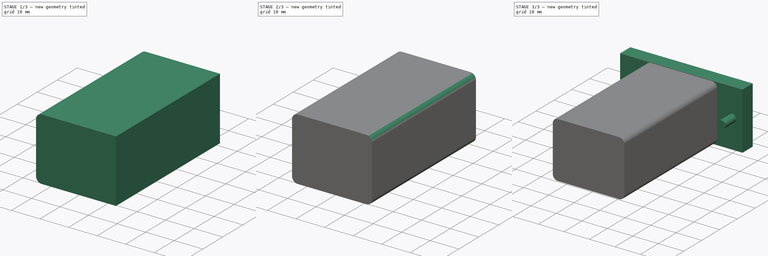
[diagram: build sequence overview — one tinted view per stage of 3, left to right]
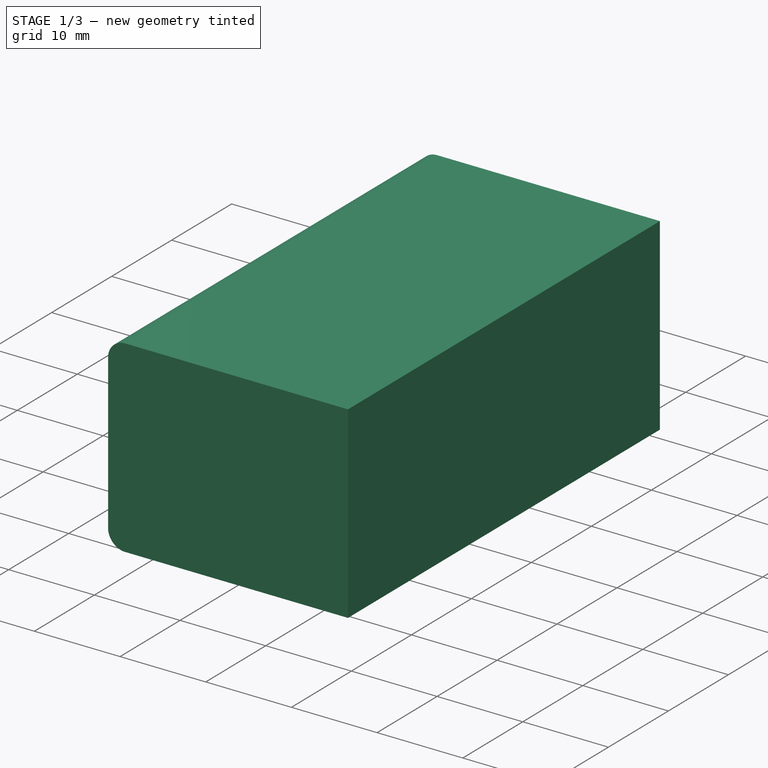
[diagram: stage 1 of 3 — iso view after this stage's code; geometry added in this stage tinted green]
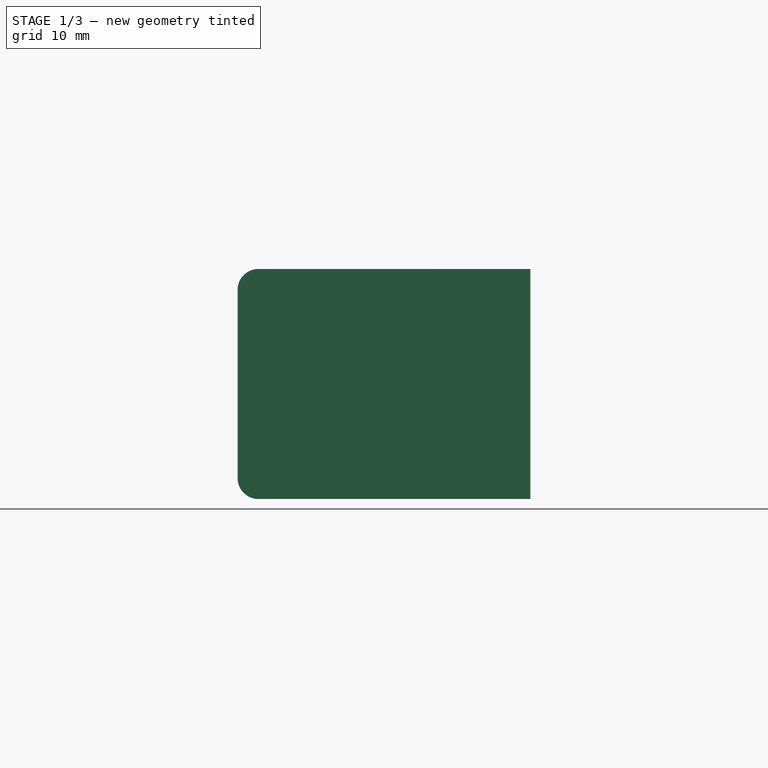
[diagram: stage 1 of 3 — front view after this stage's code; geometry added in this stage tinted green]
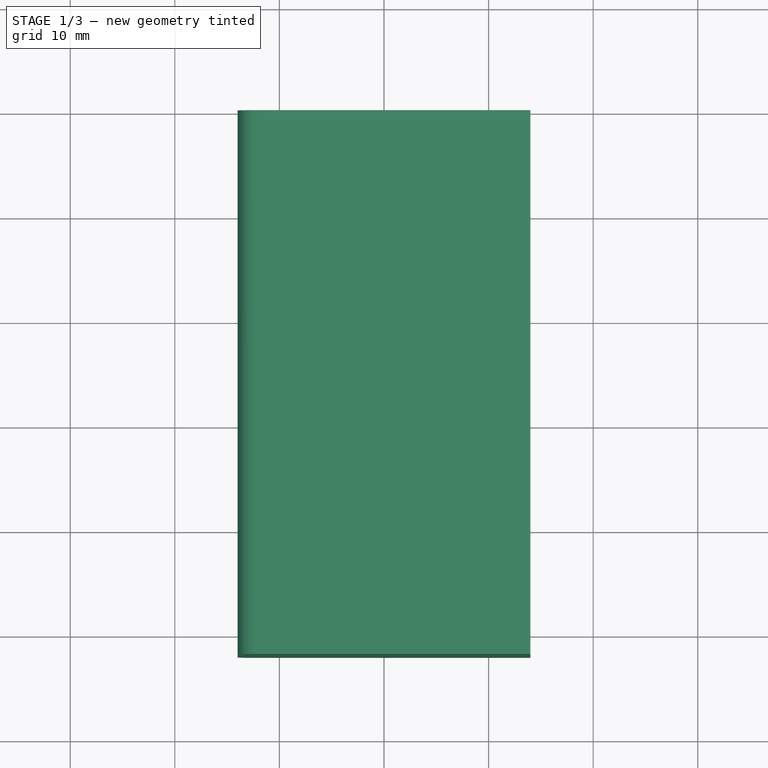
[diagram: stage 1 of 3 — top view after this stage's code; geometry added in this stage tinted green]
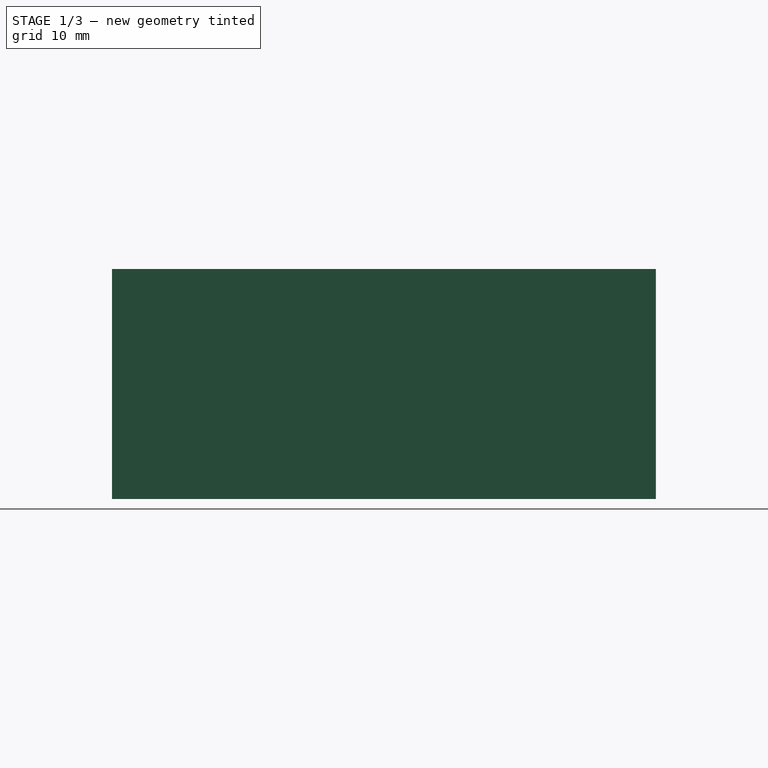
[diagram: stage 1 of 3 — right view after this stage's code; geometry added in this stage tinted green]
FCSTD DOCUMENT  (FreeCAD 0.19R24291 (Git))
Label: acpwrcon
License: All rights reserved
LicenseURL: http://en.wikipedia.org/wiki/All_rights_reserved
objects: PartDesign::Fillet×4, PartDesign::AdditiveCylinder×2, Sketcher::SketchObject×1, PartDesign::Pad×1, PartDesign::AdditiveBox×1, PartDesign::Body×1
note: 18 computed .brp shape members not serialized (recipe doc carries the construction recipe); baked Part::Feature solids carry a one-line shape summary decoded from their .brp

FEATURE [Sketcher::SketchObject] Sketch
  FullyConstrained = false
  MapMode = 5
  Placement = pos=(0,0,0) rot=(1,0,0;1.5708rad)
  Support = -> [XZ_Plane]
  sketch-geometry (4):
    g0: LineSegment StartX=-14 StartY=-11 StartZ=0 EndX=14 EndY=-11 EndZ=0
    g1: LineSegment StartX=14 StartY=-11 StartZ=0 EndX=14 EndY=11 EndZ=0
    g2: LineSegment StartX=14 StartY=11 StartZ=0 EndX=-14 EndY=11 EndZ=0
    g3: LineSegment StartX=-14 StartY=11 StartZ=0 EndX=-14 EndY=-11 EndZ=0
  constraints (8):
    c: Coincident(g0,g1)
    c: Coincident(g1,g2)
    c: Coincident(g2,g3)
    c: Coincident(g3,g0)
    c: Horizontal(g0)
    c: Horizontal(g2)
    c: Vertical(g1)
    c: Vertical(g3)
FEATURE [PartDesign::Pad] Pad
  Direction = (1,1,1)
  Length = 52
  Length2 = 100
  Placement = pos=(0,0,0) rot=(1,0,0;1.5708rad)
  Profile = -> Sketch
  Refine = true
  Type = 0
FEATURE [PartDesign::Fillet] Fillet
  Base = -> Pad [Edge8]
  BaseFeature = -> Pad
  Placement = pos=(0,0,0) rot=(1,0,0;1.5708rad)
  Radius = 2
  Refine = true
  SupportTransform = false
FEATURE [PartDesign::Fillet] Fillet001
  Base = -> Fillet [Edge15]
  BaseFeature = -> Fillet
  Placement = pos=(0,0,0) rot=(1,0,0;1.5708rad)
  Radius = 2
  Refine = true
  SupportTransform = false
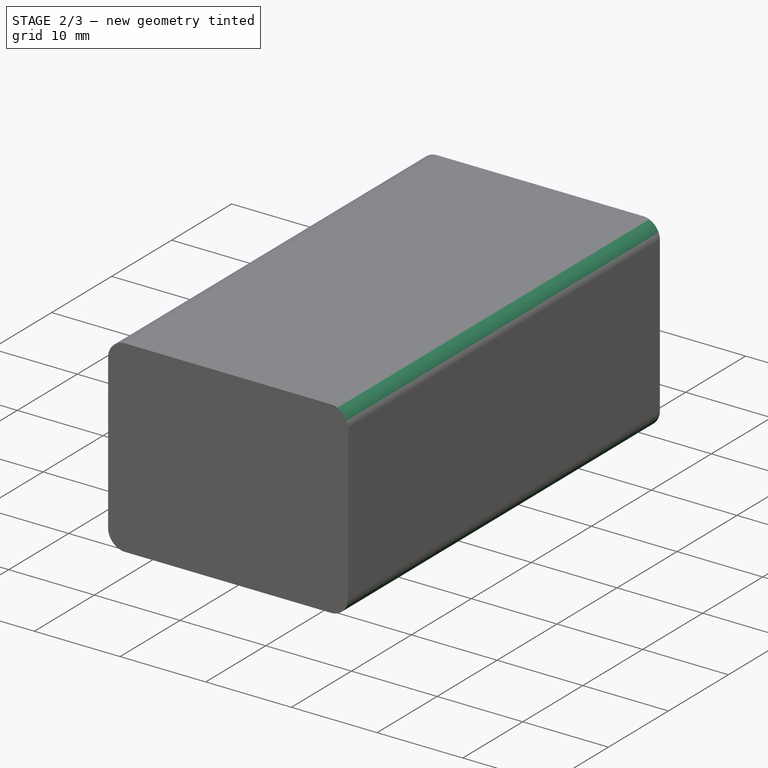
[diagram: stage 2 of 3 — iso view after this stage's code; geometry added in this stage tinted green]
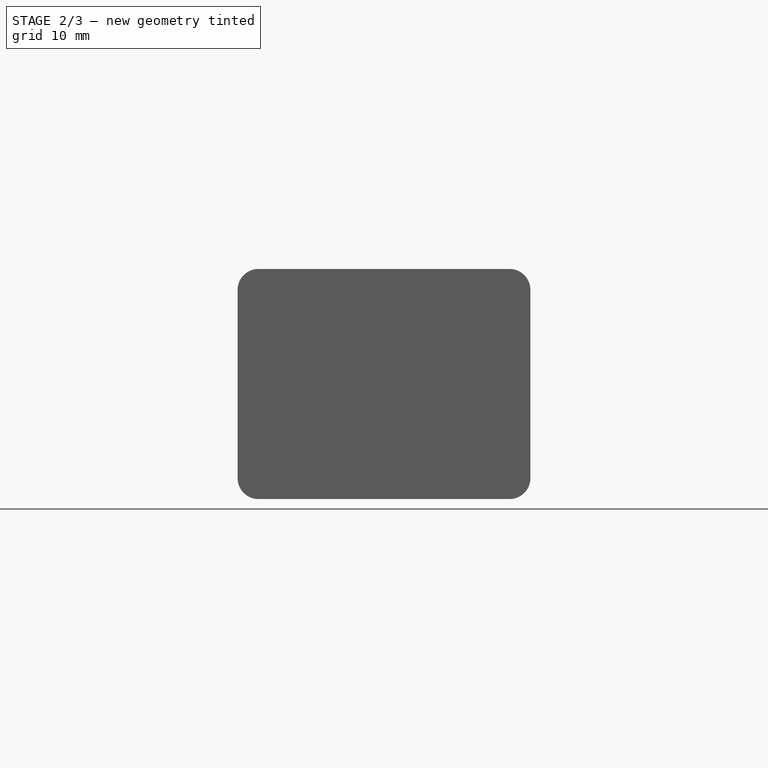
[diagram: stage 2 of 3 — front view after this stage's code; geometry added in this stage tinted green]
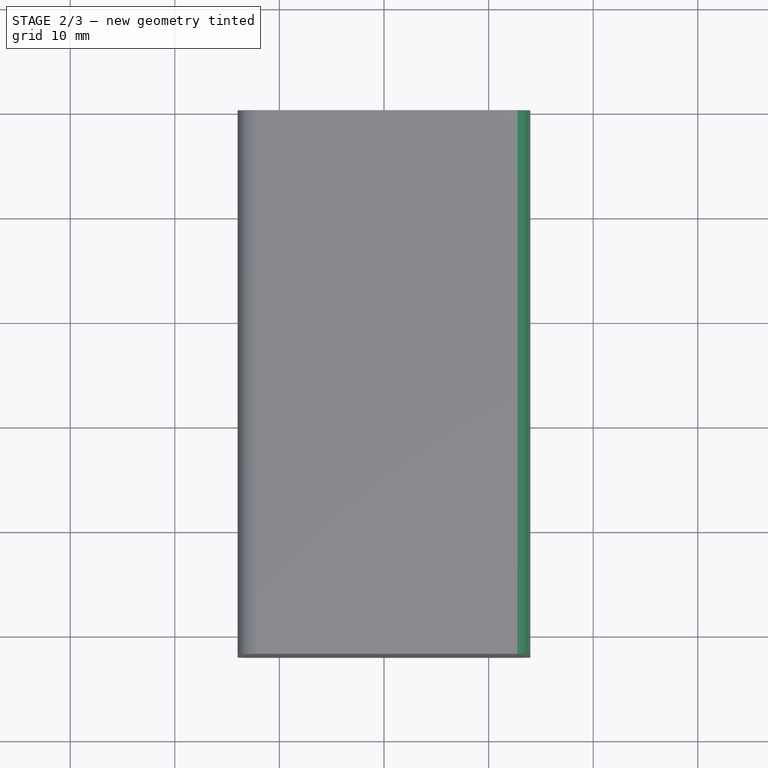
[diagram: stage 2 of 3 — top view after this stage's code; geometry added in this stage tinted green]
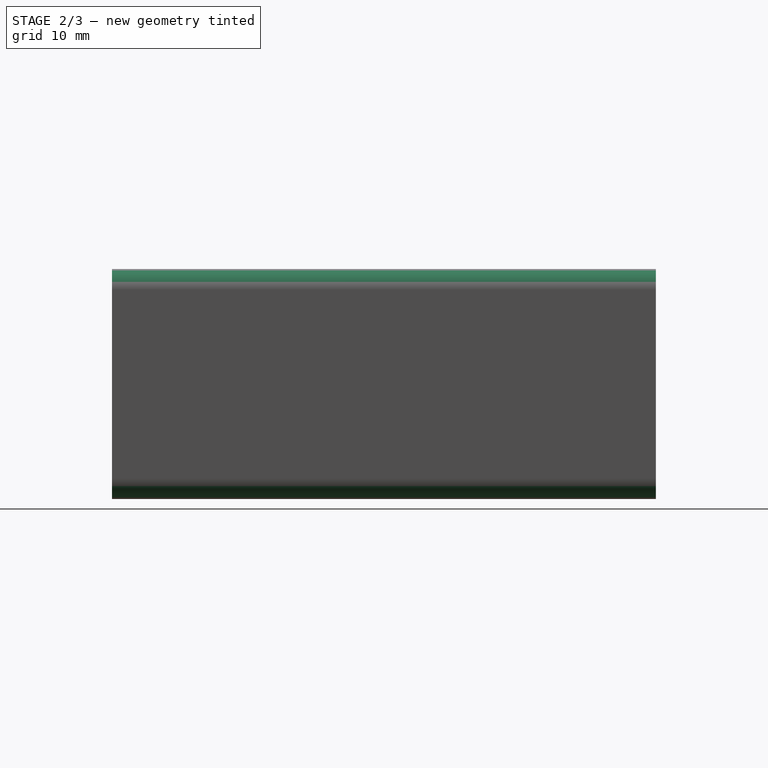
[diagram: stage 2 of 3 — right view after this stage's code; geometry added in this stage tinted green]
FEATURE [PartDesign::Fillet] Fillet002
  Base = -> Fillet001 [Edge16]
  BaseFeature = -> Fillet001
  Placement = pos=(0,0,0) rot=(1,0,0;1.5708rad)
  Radius = 2
  Refine = true
  SupportTransform = false
FEATURE [PartDesign::Fillet] Fillet003
  Base = -> Fillet002 [Edge15]
  BaseFeature = -> Fillet002
  Placement = pos=(0,0,0) rot=(1,0,0;1.5708rad)
  Radius = 2
  Refine = true
  SupportTransform = false
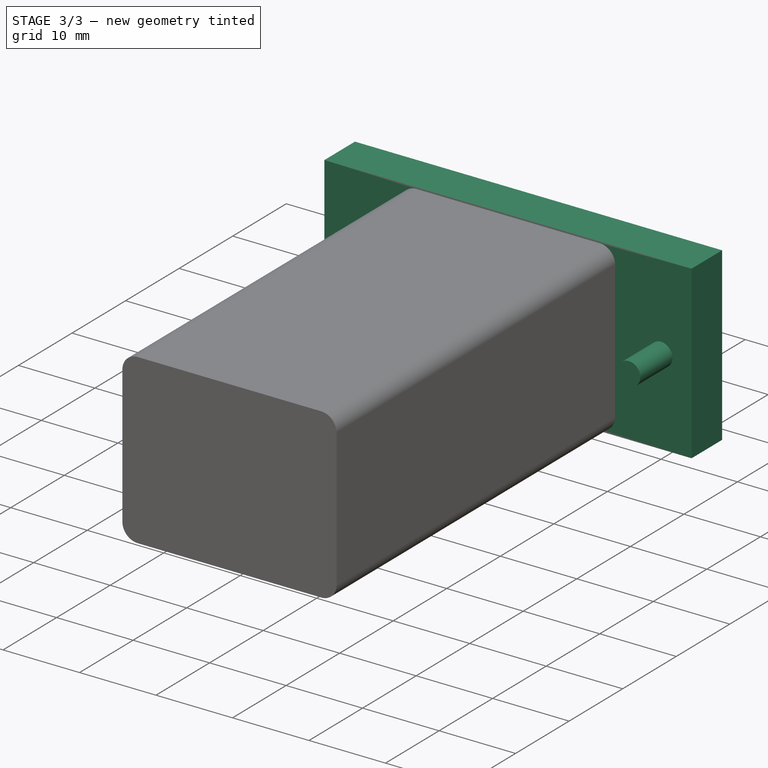
[diagram: stage 3 of 3 — iso view after this stage's code; geometry added in this stage tinted green]
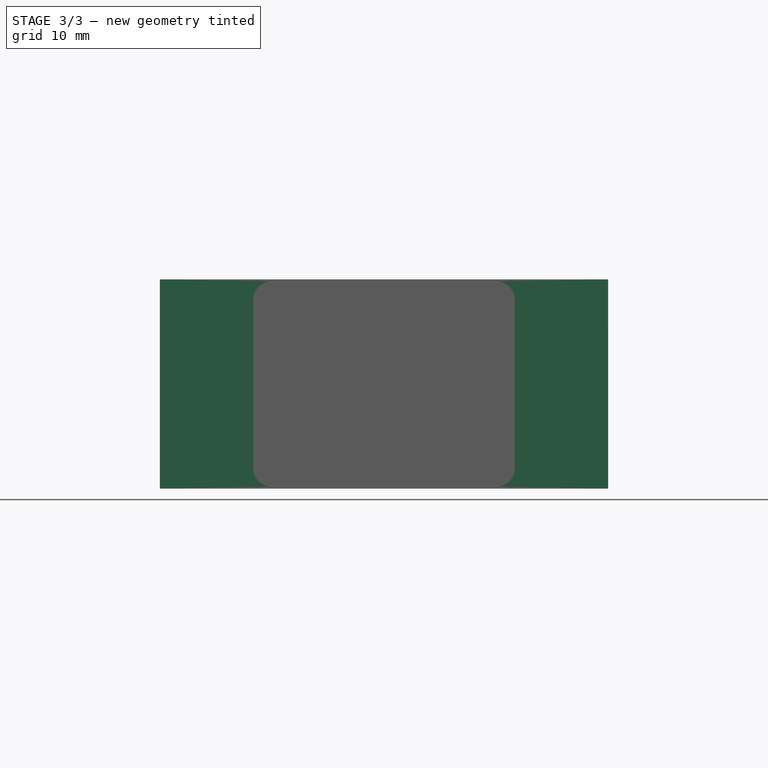
[diagram: stage 3 of 3 — front view after this stage's code; geometry added in this stage tinted green]
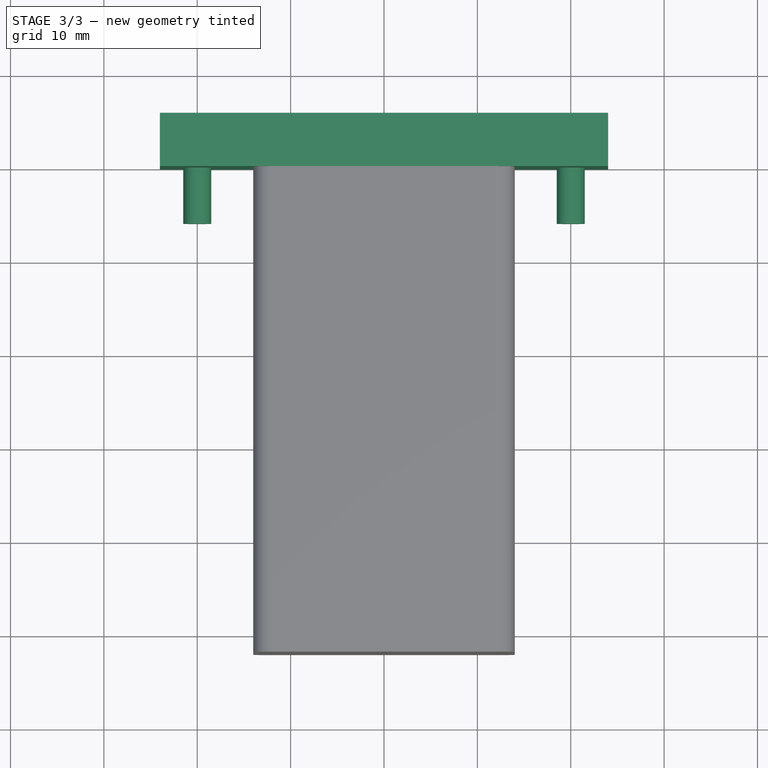
[diagram: stage 3 of 3 — top view after this stage's code; geometry added in this stage tinted green]
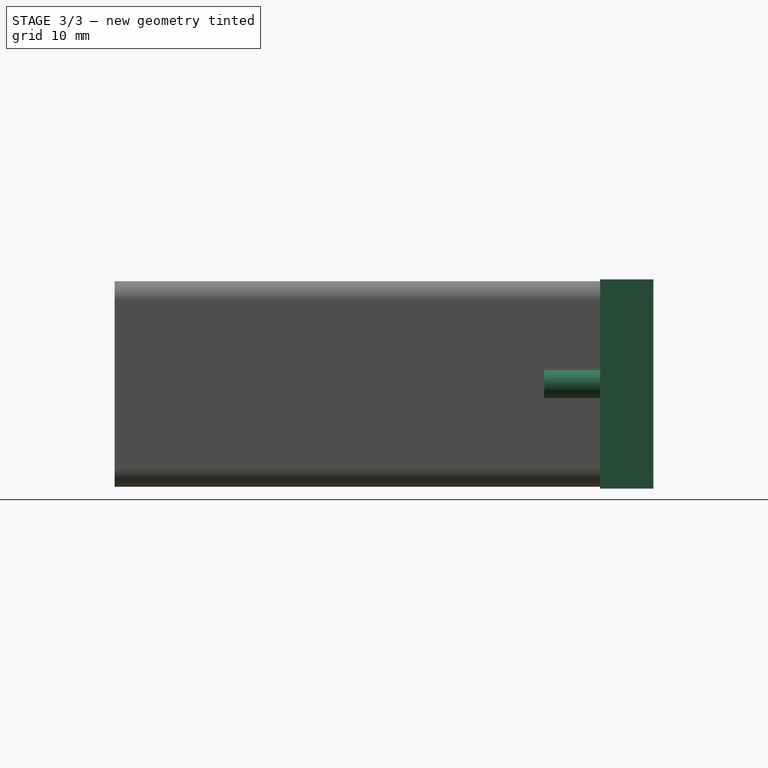
[diagram: stage 3 of 3 — right view after this stage's code; geometry added in this stage tinted green]
FEATURE [PartDesign::AdditiveBox] Box  label="flange"
  AttacherType = Attacher::AttachEngine3D
  AttachmentOffset = pos=(-24,-11.2,-57.7) rot=(0,0,1;0rad)
  BaseFeature = -> Fillet003
  Height = 5.7
  Length = 48
  MapMode = 5
  Placement = pos=(-24,5.7,-11.2) rot=(1,0,0;1.5708rad)
  Refine = true
  Support = -> [Fillet003]
  Width = 22.4
FEATURE [PartDesign::AdditiveCylinder] Cylinder  label="leftscrew"
  Angle = 360
  AttacherType = Attacher::AttachEngine3D
  AttachmentOffset = pos=(4,11.2,0) rot=(0,0,1;0rad)
  BaseFeature = -> Box
  Height = 6
  MapMode = 5
  Placement = pos=(-20,1.07e-14,-3.6e-15) rot=(1,0,0;1.5708rad)
  Radius = 1.5
  Refine = true
  Support = -> [Box]
FEATURE [PartDesign::AdditiveCylinder] Cylinder001  label="rightscrew"
  Angle = 360
  AttacherType = Attacher::AttachEngine3D
  AttachmentOffset = pos=(40,0,0) rot=(0,0,1;0rad)
  BaseFeature = -> Cylinder
  Height = 6
  MapMode = 5
  Placement = pos=(20,1.05e-14,-3.6e-15) rot=(1,0,0;1.5708rad)
  Radius = 1.5
  Refine = true
  Support = -> [Cylinder]
FEATURE [PartDesign::Body] Body
  Group = -> [Sketch,Pad,Fillet,Fillet001,Fillet002,Fillet003,Box,Cylinder,Cylinder001]
  Origin = -> Origin
  Tip = -> Cylinder001
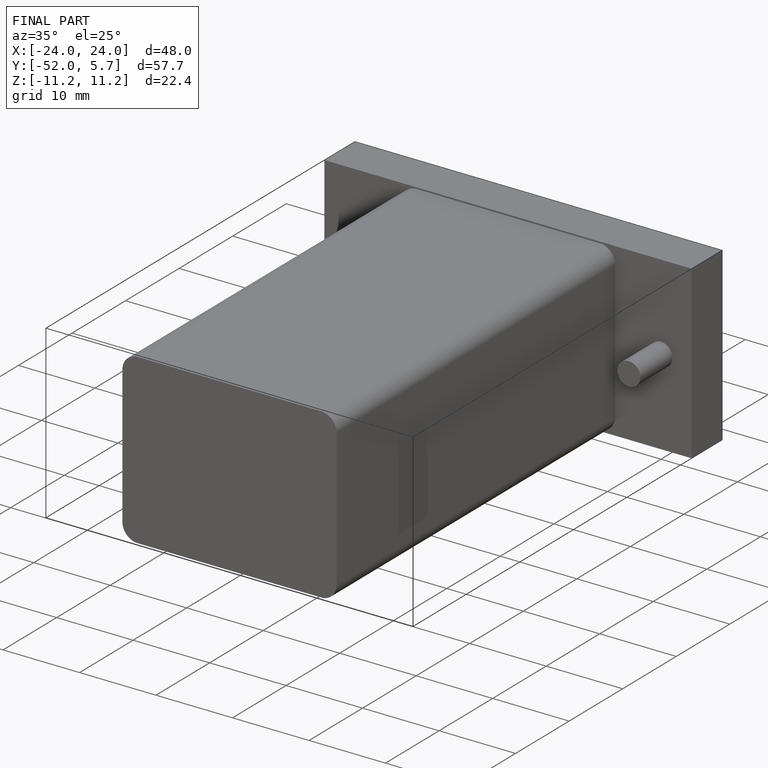
[diagram: finished part — iso view with bounding-box wireframe]
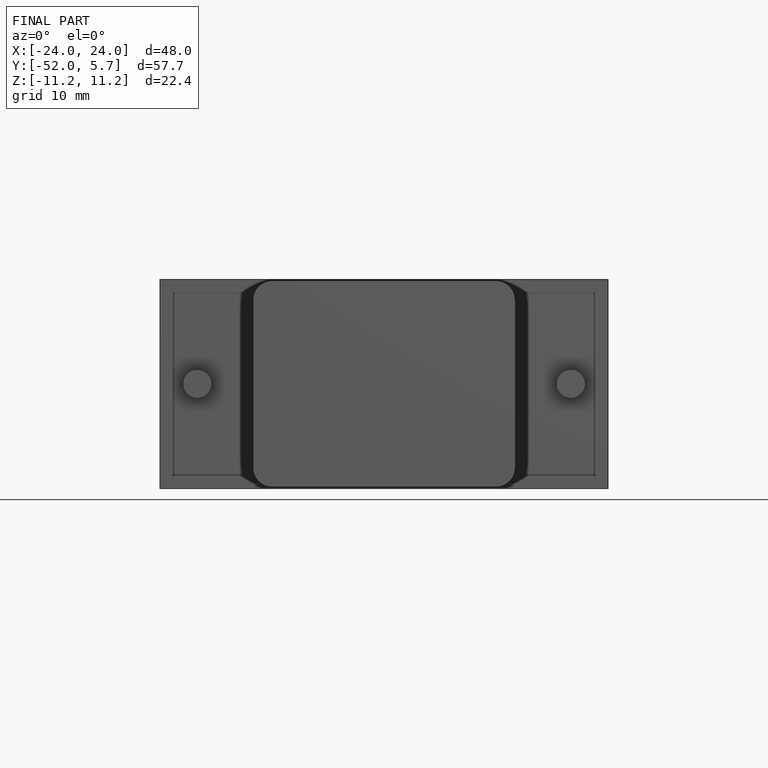
[diagram: finished part — front view with bounding-box wireframe]
